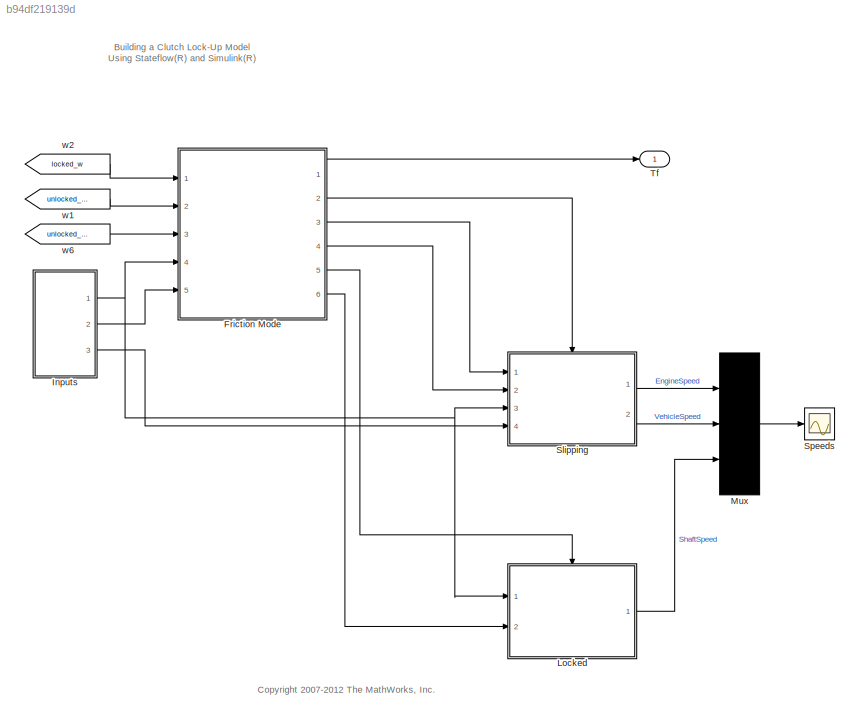
MODEL slx_b94df219139d
KIND model
CONFIG AbsTol = 1e-7
CONFIG EnableMultiTasking = off
CONFIG FixedStep = auto
CONFIG MaxStep = auto
CONFIG MinStep = auto
CONFIG RelTol = 1e-6
CONFIG SampleTimeConstraint = Unconstrained
CONFIG Solver = ode23
CONFIG SolverName = ode23
CONFIG StartTime = 0.0
CONFIG StopTime = 10
WORKSPACE source: MATLAB code (in-file) + MAT-file member
WORKSPACE code: load sldemo_clutchparam;
WORKSPACE Fn = [0 1 2 3 4 5 6 7 8 9 10 0 ... (22 elements, 11x2)]
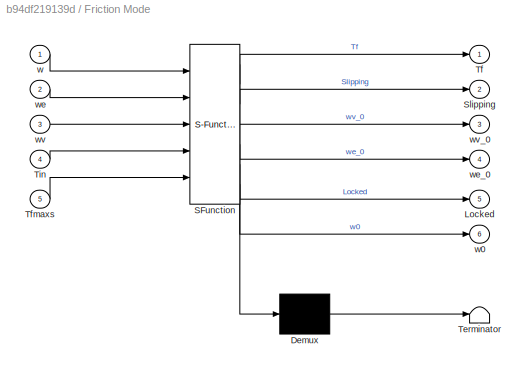
BLOCK [SubSystem] Friction Mode
  ErrorFcn = Stateflow.Translate.translate
  PermitHierarchicalResolution = ExplicitOnly
  Ports = [5, 6]
  RequestExecContextInheritance = off
  SFBlockType = Chart
  TreatAsAtomicUnit = on
  Variant = off
BLOCK [Demux] Friction Mode/ Demux 
  Outputs = 1
  Ports = [1, 1]
BLOCK [Outport] Friction Mode/ Locked
  IconDisplay = Port number
  Port = 5
BLOCK [S-Function] Friction Mode/ SFunction 
  EnableBusSupport = off
  FunctionName = sf_sfun
  Parameters = Ie,Iv,be,bv
  PortCounts = [5 7]
  Ports = [5, 7]
  SFcnIsStateOwnerBlock = off
  SFunctionDeploymentMode = off
  Tag = Stateflow S-Function sf_clutch_enabled_subsystems 2
BLOCK [Outport] Friction Mode/ Slipping
  IconDisplay = Port number
  Port = 2
BLOCK [Terminator] Friction Mode/ Terminator 
BLOCK [Outport] Friction Mode/Tf
  IconDisplay = Port number
BLOCK [Inport] Friction Mode/Tfmaxs
  IconDisplay = Port number
  Port = 5
BLOCK [Inport] Friction Mode/Tin
  IconDisplay = Port number
  Port = 4
BLOCK [Inport] Friction Mode/w
  IconDisplay = Port number
BLOCK [Outport] Friction Mode/w0
  IconDisplay = Port number
  Port = 6
BLOCK [Inport] Friction Mode/we
  IconDisplay = Port number
  Port = 2
BLOCK [Outport] Friction Mode/we_0
  IconDisplay = Port number
  Port = 4
BLOCK [Inport] Friction Mode/wv
  IconDisplay = Port number
  Port = 3
BLOCK [Outport] Friction Mode/wv_0
  IconDisplay = Port number
  Port = 3
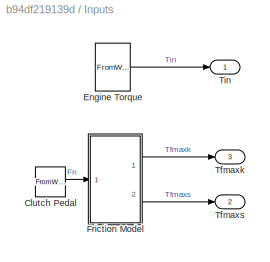
BLOCK [SubSystem] Inputs
  Ports = [0, 3]
  RequestExecContextInheritance = off
  Variant = off
BLOCK [FromWorkspace] Inputs/Clutch Pedal
  SampleTime = 0
  VariableName = Fn
BLOCK [FromWorkspace] Inputs/Engine Torque
  SampleTime = 0
  VariableName = Tin
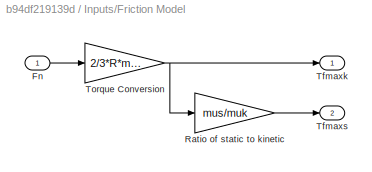
BLOCK [SubSystem] Inputs/Friction Model
  Ports = [1, 2]
  RequestExecContextInheritance = off
  Variant = off
BLOCK [Inport] Inputs/Friction Model/Fn
  IconDisplay = Port number
BLOCK [Gain] Inputs/Friction Model/Ratio of static to kinetic
  Gain = mus/muk
BLOCK [Outport] Inputs/Friction Model/Tfmaxk
  IconDisplay = Port number
  InitialOutput = 0
BLOCK [Outport] Inputs/Friction Model/Tfmaxs
  IconDisplay = Port number
  InitialOutput = 0
  Port = 2
BLOCK [Gain] Inputs/Friction Model/Torque Conversion
  Gain = 2/3*R*muk
BLOCK [Outport] Inputs/Tfmaxk
  IconDisplay = Port number
  Port = 3
BLOCK [Outport] Inputs/Tfmaxs
  IconDisplay = Port number
  Port = 2
BLOCK [Outport] Inputs/Tin
  IconDisplay = Port number
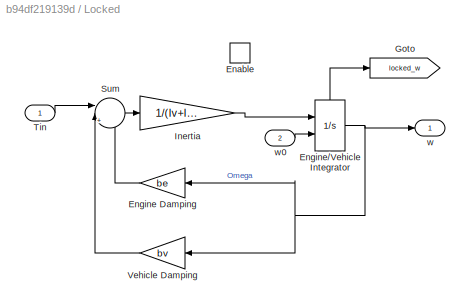
BLOCK [SubSystem] Locked
  Ports = [2, 1, 1]
  RequestExecContextInheritance = off
  TreatAsAtomicUnit = on
  Variant = off
BLOCK [EnablePort] Locked/Enable
  Ports = []
  StatesWhenEnabling = reset
BLOCK [Gain] Locked/Engine Damping
  Gain = be
BLOCK [Integrator] Locked/Engine//Vehicle Integrator
  InitialConditionSource = external
  Ports = [2, 1, 0, 0, 1]
  ShowStatePort = on
BLOCK [Goto] Locked/Goto
  GotoTag = locked_w
  TagVisibility = global
BLOCK [Gain] Locked/Inertia
  Gain = 1/(Iv+Ie)
BLOCK [Sum] Locked/Sum
  IconShape = round
  Inputs = ||+--
  Ports = [3, 1]
BLOCK [Inport] Locked/Tin
  IconDisplay = Port number
BLOCK [Gain] Locked/Vehicle Damping
  Gain = bv
BLOCK [Outport] Locked/w
  IconDisplay = Port number
  InitialOutput = 0
BLOCK [Inport] Locked/w0
  IconDisplay = Port number
  Port = 2
BLOCK [Mux] Mux
  Inputs = 3
  Ports = [3, 1]
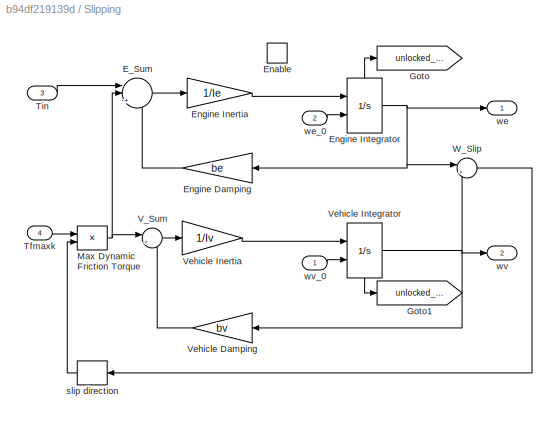
BLOCK [SubSystem] Slipping
  Ports = [4, 2, 1]
  RequestExecContextInheritance = off
  TreatAsAtomicUnit = on
  Variant = off
BLOCK [Sum] Slipping/E_Sum
  IconShape = round
  Inputs = ||+--
  Ports = [3, 1]
BLOCK [EnablePort] Slipping/Enable
  Ports = []
  StatesWhenEnabling = reset
BLOCK [Gain] Slipping/Engine Damping
  Gain = be
BLOCK [Gain] Slipping/Engine Inertia
  Gain = 1/Ie
BLOCK [Integrator] Slipping/Engine Integrator
  InitialConditionSource = external
  Ports = [2, 1, 0, 0, 1]
  ShowStatePort = on
BLOCK [Goto] Slipping/Goto
  GotoTag = unlocked_we
  TagVisibility = global
BLOCK [Goto] Slipping/Goto1
  GotoTag = unlocked_wv
  TagVisibility = global
BLOCK [Product] Slipping/Max Dynamic Friction Torque
  Ports = [2, 1]
BLOCK [Inport] Slipping/Tfmaxk
  IconDisplay = Port number
  Port = 4
BLOCK [Inport] Slipping/Tin
  IconDisplay = Port number
  Port = 3
BLOCK [Sum] Slipping/V_Sum
  IconShape = round
  Inputs = |+-
  Ports = [2, 1]
BLOCK [Gain] Slipping/Vehicle Damping
  Gain = bv
BLOCK [Gain] Slipping/Vehicle Inertia
  Gain = 1/Iv
BLOCK [Integrator] Slipping/Vehicle Integrator
  InitialConditionSource = external
  Ports = [2, 1, 0, 0, 1]
  ShowStatePort = on
BLOCK [Sum] Slipping/W_Slip
  IconShape = round
  Inputs = |+-
  Ports = [2, 1]
BLOCK [Signum] Slipping/slip direction
BLOCK [Outport] Slipping/we
  IconDisplay = Port number
  InitialOutput = 0
BLOCK [Inport] Slipping/we_0
  IconDisplay = Port number
  Port = 2
BLOCK [Outport] Slipping/wv
  IconDisplay = Port number
  InitialOutput = 0
  Port = 2
BLOCK [Inport] Slipping/wv_0
  IconDisplay = Port number
BLOCK [Scope] Speeds
  NumInputPorts = 1
  Ports = [1]
  ScopeSpecificationString = Simulink.scopes.TimeScopeBlockCfg('CurrentConfiguration', extmgr.ConfigurationSet(extmgr.Configuration('Core','General UI',true,'MessageLogAutoOpenMode','for warn/fail messages','ShowCloseAll',true,'ShowBringAllForward',true),extmgr.Configuration('Core','Source UI',true,'PlaybackToolbar',true),extmgr.Configuration('Sources','WiredSimulink',true,'PointsPerSignal',50000,'DataLoggingLimitDataPoints',...<+1184ch>
BLOCK [Outport] Tf
  IconDisplay = Port number
  InitialOutput = 0
BLOCK [From] w1
  GotoTag = unlocked_we
  TagVisibility = global
BLOCK [From] w2
  GotoTag = locked_w
  TagVisibility = global
BLOCK [From] w6
  GotoTag = unlocked_wv
  TagVisibility = global
ANNOTATION (root): Building a Clutch Lock-Up Model Using Stateflow(R) and Simulink(R)
ANNOTATION (root): <copyright redacted>
LINE Friction Mode:1 -> Tf:1
LINE Friction Mode:2 -> Slipping:enable
LINE Friction Mode:3 -> Slipping:1
LINE Friction Mode:4 -> Slipping:2
LINE Friction Mode:5 -> Locked:enable
LINE Friction Mode:6 -> Locked:2
LINE Inputs/Clutch Pedal:1 -> Inputs/Friction Model:1
LINE Inputs/Engine Torque:1 -> Inputs/Tin:1
LINE Inputs/Friction Model/Fn:1 -> Inputs/Friction Model/Torque Conversion:1
LINE Inputs/Friction Model/Ratio of static to kinetic:1 -> Inputs/Friction Model/Tfmaxs:1
NET Inputs/Friction Model/Torque Conversion:1 -> Inputs/Friction Model/Ratio of static to kinetic:1, Inputs/Friction Model/Tfmaxk:1
LINE Inputs/Friction Model:1 -> Inputs/Tfmaxk:1
LINE Inputs/Friction Model:2 -> Inputs/Tfmaxs:1
NET Inputs:1 -> Friction Mode:4, Locked:1, Slipping:3
LINE Inputs:2 -> Friction Mode:5
LINE Inputs:3 -> Slipping:4
LINE Locked/Engine Damping:1 -> Locked/Sum:3
NET Locked/Engine//Vehicle Integrator:1 -> Locked/Engine Damping:1, Locked/Vehicle Damping:1, Locked/w:1
LINE Locked/Engine//Vehicle Integrator:state -> Locked/Goto:1
LINE Locked/Inertia:1 -> Locked/Engine//Vehicle Integrator:1
LINE Locked/Sum:1 -> Locked/Inertia:1
LINE Locked/Tin:1 -> Locked/Sum:1
LINE Locked/Vehicle Damping:1 -> Locked/Sum:2
LINE Locked/w0:1 -> Locked/Engine//Vehicle Integrator:2
LINE Locked:1 -> Mux:3
LINE Mux:1 -> Speeds:1
LINE Slipping/E_Sum:1 -> Slipping/Engine Inertia:1
LINE Slipping/Engine Damping:1 -> Slipping/E_Sum:3
LINE Slipping/Engine Inertia:1 -> Slipping/Engine Integrator:1
NET Slipping/Engine Integrator:1 -> Slipping/Engine Damping:1, Slipping/W_Slip:1, Slipping/we:1
LINE Slipping/Engine Integrator:state -> Slipping/Goto:1
NET Slipping/Max Dynamic Friction Torque:1 -> Slipping/E_Sum:2, Slipping/V_Sum:1
LINE Slipping/Tfmaxk:1 -> Slipping/Max Dynamic Friction Torque:1
LINE Slipping/Tin:1 -> Slipping/E_Sum:1
LINE Slipping/V_Sum:1 -> Slipping/Vehicle Inertia:1
LINE Slipping/Vehicle Damping:1 -> Slipping/V_Sum:2
LINE Slipping/Vehicle Inertia:1 -> Slipping/Vehicle Integrator:1
NET Slipping/Vehicle Integrator:1 -> Slipping/Vehicle Damping:1, Slipping/W_Slip:2, Slipping/wv:1
LINE Slipping/Vehicle Integrator:state -> Slipping/Goto1:1
LINE Slipping/W_Slip:1 -> Slipping/slip direction:1
LINE Slipping/slip direction:1 -> Slipping/Max Dynamic Friction Torque:2
LINE Slipping/we_0:1 -> Slipping/Engine Integrator:2
LINE Slipping/wv_0:1 -> Slipping/Vehicle Integrator:2
LINE Slipping:1 -> Mux:1
LINE Slipping:2 -> Mux:2
LINE w1:1 -> Friction Mode:2
LINE w2:1 -> Friction Mode:1
LINE w6:1 -> Friction Mode:3
note: NET lines group one-source signal fan-out (src -> all destinations, sorted); 1:1 wires keep LINE
CHART Friction Mode states=10 transitions=17
  STATE_LABEL 'T = getSlipTorque'
  STATE_LABEL '{T = (Tin - we*(be+bv))*Iv/(Iv+Ie)+bv*we;}'
  STATE_LABEL 'Slipping\ndu:\n    Tf = getSlipTorque();'
  STATE_LABEL 'lockup = detectLockup'
  STATE_LABEL '{lockup = (abs(getSlipTorque()) < Tfmaxs) && ...\n                  in(SlipCalc.SameVelocity);}'
  STATE_LABEL 'SlipCalc'
  STATE_LABEL 'EngineSlower'
  STATE_LABEL 'EngineFaster'
  STATE_LABEL 'SameVelocity'
  STATE_LABEL '[we == wv]'
  STATE_LABEL '[we > wv]'
  STATE_LABEL '[we > wv]'
  STATE_LABEL '[we < wv]'
  STATE_LABEL '[we >= wv]'
  STATE_LABEL '[we <= wv]'
  STATE_LABEL 'lockup = detectLockup'
  STATE_LABEL '{lockup = (abs(getSlipTorque()) < Tfmaxs) && ...\n                  in(SlipCalc.SameVelocity);}'
  STATE_LABEL 'SlipCalc'
  STATE_LABEL 'EngineSlower'
  STATE_LABEL 'EngineFaster'
  STATE_LABEL 'SameVelocity'
  STATE_LABEL '[we == wv]'
  STATE_LABEL '[we > wv]'
  STATE_LABEL '[we > wv]'
  STATE_LABEL '[we < wv]'
  STATE_LABEL '[we >= wv]'
  STATE_LABEL '[we <= wv]'
  STATE_LABEL 'EngineSlower'
  STATE_LABEL 'EngineFaster'
  STATE_LABEL 'SameVelocity'
  STATE_LABEL 'T = getLockedTorque'
  STATE_LABEL '{T = (Iv*Tin-(Iv*be-Ie*bv)*w)/(Iv+Ie);}'
  STATE_LABEL 'break = detectSlip'
  STATE_LABEL '{break = abs(getLockedTorque()) > Tfmaxs; }'
  STATE_LABEL 'Locked\ndu:\n    Tf = getLockedTorque();'
